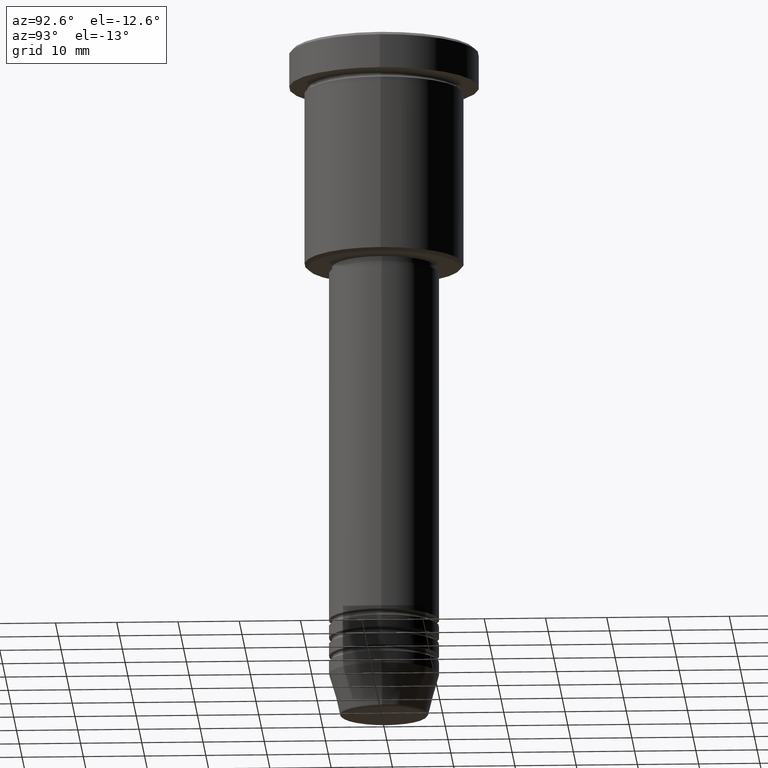
[diagram: clean part render]
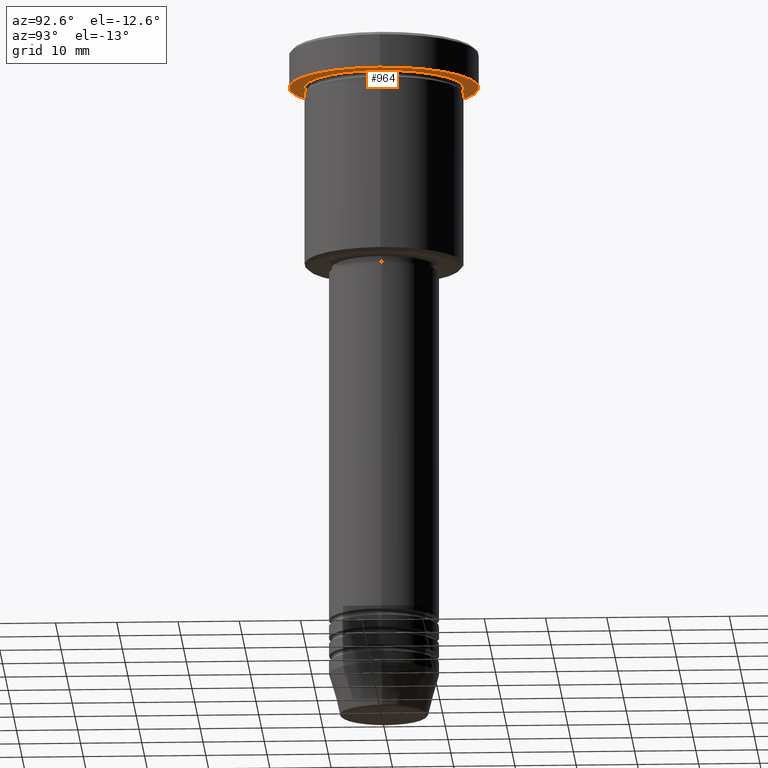
[diagram: same view with one face highlighted and labeled with its STEP entity id]
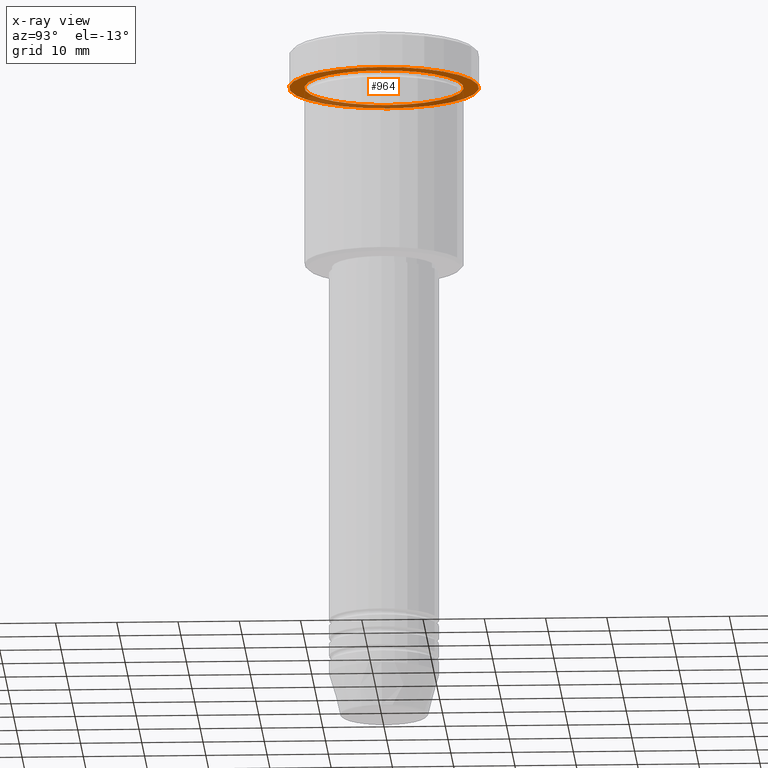
[diagram: x-ray of the same camera — body ghosted, the highlighted face saturated]
A machine part, auxiliary view. The second image highlights one B-rep face of the part: STEP entity #964.
The next image is the same camera in x-ray: the body ghosted, the highlighted face saturated — about 32% of this face is hidden behind the body in this view.
In plain terms, the highlighted planar face has unit normal (0, 0, -1).
Its self-contained STEP definition (entity closure, byte-faithful):
#13 = ORIENTED_EDGE ( 'NONE', *, *, #1038, .T. ) ;
#27 = DIRECTION ( 'NONE',  ( 0.000000000000000000, 0.000000000000000000, -1.000000000000000000 ) ) ;
#77 = DIRECTION ( 'NONE',  ( -1.000000000000000000, 0.000000000000000000, 0.000000000000000000 ) ) ;
#80 = EDGE_LOOP ( 'NONE', ( #418, #13 ) ) ;
#103 = VERTEX_POINT ( 'NONE', #1139 ) ;
#124 = VERTEX_POINT ( 'NONE', #570 ) ;
#127 = DIRECTION ( 'NONE',  ( -1.000000000000000000, 0.000000000000000000, 0.000000000000000000 ) ) ;
#147 = CIRCLE ( 'NONE', #915, 15.50000000000000000 ) ;
#165 = AXIS2_PLACEMENT_3D ( 'NONE', #320, #27, #948 ) ;
#193 = AXIS2_PLACEMENT_3D ( 'NONE', #466, #1076, #77 ) ;
#208 = VERTEX_POINT ( 'NONE', #1108 ) ;
#217 = FACE_OUTER_BOUND ( 'NONE', #868, .T. ) ;
#221 = CARTESIAN_POINT ( 'NONE',  ( 0.000000000000000000, 0.000000000000000000, -5.999999999999995559 ) ) ;
#320 = CARTESIAN_POINT ( 'NONE',  ( 0.000000000000000000, 15.50000000000000000, -5.999999999999995559 ) ) ;
#324 = CIRCLE ( 'NONE', #990, 13.00000000000000000 ) ;
#347 = CARTESIAN_POINT ( 'NONE',  ( 0.000000000000000000, 0.000000000000000000, -5.999999999999995559 ) ) ;
#360 = ORIENTED_EDGE ( 'NONE', *, *, #1107, .F. ) ;
#418 = ORIENTED_EDGE ( 'NONE', *, *, #882, .T. ) ;
#466 = CARTESIAN_POINT ( 'NONE',  ( 0.000000000000000000, 0.000000000000000000, -5.999999999999995559 ) ) ;
#540 = CIRCLE ( 'NONE', #844, 15.50000000000000000 ) ;
#570 = CARTESIAN_POINT ( 'NONE',  ( 15.50000000000000000, 0.000000000000000000, -5.999999999999995559 ) ) ;
#590 = PLANE ( 'NONE',  #165 ) ;
#595 = ORIENTED_EDGE ( 'NONE', *, *, #635, .F. ) ;
#596 = DIRECTION ( 'NONE',  ( -0.000000000000000000, -0.000000000000000000, 1.000000000000000000 ) ) ;
#617 = DIRECTION ( 'NONE',  ( 1.000000000000000000, 0.000000000000000000, 0.000000000000000000 ) ) ;
#631 = DIRECTION ( 'NONE',  ( -0.000000000000000000, -0.000000000000000000, 1.000000000000000000 ) ) ;
#635 = EDGE_CURVE ( 'NONE', #124, #677, #540, .T. ) ;
#677 = VERTEX_POINT ( 'NONE', #1165 ) ;
#748 = CIRCLE ( 'NONE', #193, 13.00000000000000000 ) ;
#753 = FACE_BOUND ( 'NONE', #80, .T. ) ;
#783 = DIRECTION ( 'NONE',  ( 1.000000000000000000, 0.000000000000000000, 0.000000000000000000 ) ) ;
#794 = DIRECTION ( 'NONE',  ( -0.000000000000000000, -0.000000000000000000, 1.000000000000000000 ) ) ;
#801 = CARTESIAN_POINT ( 'NONE',  ( 0.000000000000000000, 0.000000000000000000, -5.999999999999995559 ) ) ;
#844 = AXIS2_PLACEMENT_3D ( 'NONE', #347, #631, #783 ) ;
#868 = EDGE_LOOP ( 'NONE', ( #595, #360 ) ) ;
#882 = EDGE_CURVE ( 'NONE', #103, #208, #748, .T. ) ;
#915 = AXIS2_PLACEMENT_3D ( 'NONE', #801, #794, #617 ) ;
#948 = DIRECTION ( 'NONE',  ( -1.000000000000000000, 0.000000000000000000, -0.000000000000000000 ) ) ;
#964 = ADVANCED_FACE ( 'NONE', ( #753, #217 ), #590, .T. ) ;
#990 = AXIS2_PLACEMENT_3D ( 'NONE', #221, #596, #127 ) ;
#1038 = EDGE_CURVE ( 'NONE', #208, #103, #324, .T. ) ;
#1076 = DIRECTION ( 'NONE',  ( -0.000000000000000000, -0.000000000000000000, 1.000000000000000000 ) ) ;
#1107 = EDGE_CURVE ( 'NONE', #677, #124, #147, .T. ) ;
#1108 = CARTESIAN_POINT ( 'NONE',  ( 13.00000000000000000, 1.592040838891559095E-15, -5.999999999999994671 ) ) ;
#1139 = CARTESIAN_POINT ( 'NONE',  ( -13.00000000000000000, 0.000000000000000000, -5.999999999999994671 ) ) ;
#1165 = CARTESIAN_POINT ( 'NONE',  ( -15.50000000000000000, 1.898202538678397557E-15, -5.999999999999995559 ) ) ;